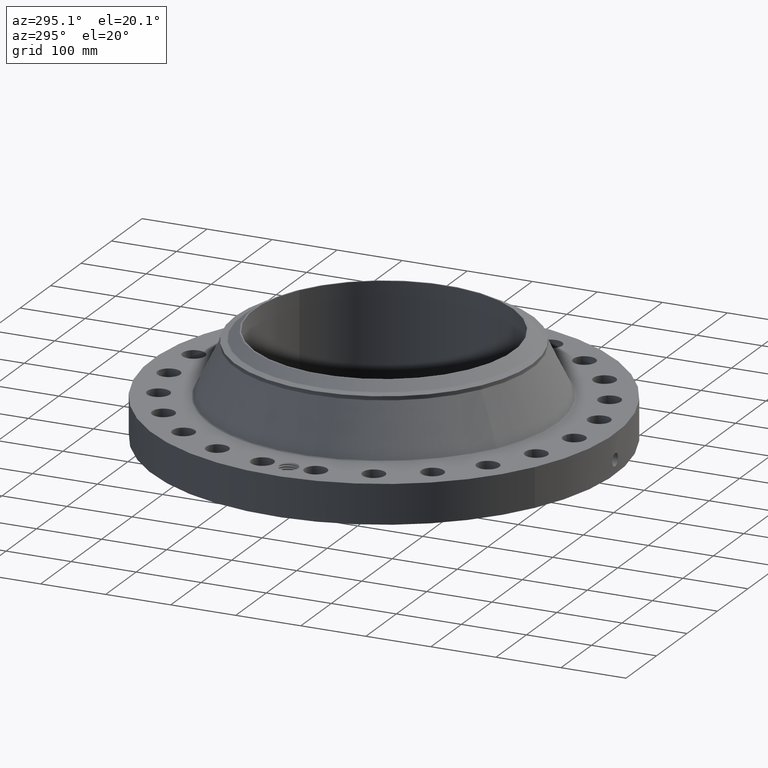
[diagram: clean part render]
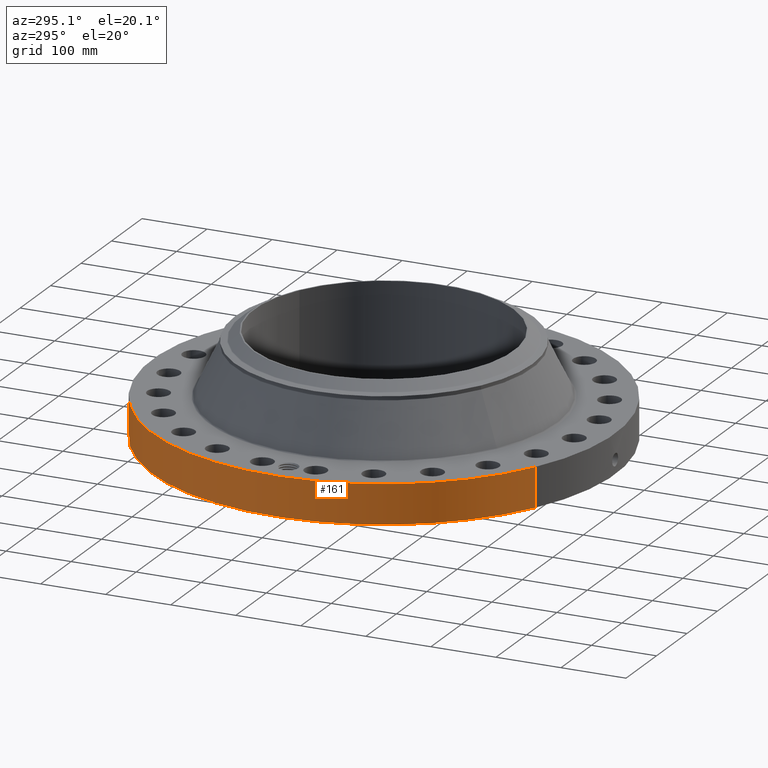
[diagram: same view with one face highlighted and labeled with its STEP entity id]
A machine part, auxiliary view. The second image highlights one B-rep face of the part: STEP entity #161.
In plain terms, the highlighted cylindrical surface (partial cylindrical patch) has radius 355.6 mm, axis along (0, 0, -1).
Its self-contained STEP definition (entity closure, byte-faithful):
#38=AXIS2_PLACEMENT_3D('Cylinder Axis2P3D',#35,#36,#37) ;
#42=AXIS2_PLACEMENT_3D('Circle Axis2P3D',#40,#41,$) ;
#58=AXIS2_PLACEMENT_3D('Circle Axis2P3D',#56,#57,$) ;
#35=CARTESIAN_POINT('Axis2P3D Location',(0.,0.,3.15500000001)) ;
#40=CARTESIAN_POINT('Axis2P3D Location',(0.,0.,0.0600000000002)) ;
#44=CARTESIAN_POINT('Vertex',(-6.71195754049,-12.2861558665,0.0600000000002)) ;
#46=CARTESIAN_POINT('Vertex',(6.71195754049,12.2861558665,0.0600000000002)) ;
#49=CARTESIAN_POINT('Line Origine',(-6.71195754049,-12.2861558665,1.25000000001)) ;
#53=CARTESIAN_POINT('Vertex',(-6.71195754049,-12.2861558665,2.44000000001)) ;
#56=CARTESIAN_POINT('Axis2P3D Location',(0.,0.,2.44000000001)) ;
#60=CARTESIAN_POINT('Vertex',(6.71195754049,12.2861558665,2.44000000001)) ;
#63=CARTESIAN_POINT('Line Origine',(6.71195754049,12.2861558665,1.25000000001)) ;
#75=CARTESIAN_POINT('Control Point',(-0.000716127867557,13.9999999817,1.2941184611)) ;
#76=CARTESIAN_POINT('Control Point',(-0.019075692183,13.9999990426,1.29408137462)) ;
#77=CARTESIAN_POINT('Control Point',(-0.0374320289482,13.9999617001,1.29261239075)) ;
#78=CARTESIAN_POINT('Control Point',(-0.0555635768001,13.9998897385,1.28972942871)) ;
#79=CARTESIAN_POINT('Vertex',(-0.000715744029725,13.9999999818,1.29411851041)) ;
#81=CARTESIAN_POINT('Vertex',(-0.0555546444298,13.9998900267,1.28973086744)) ;
#85=CARTESIAN_POINT('Control Point',(-0.0555545482502,13.9998897743,1.28973031747)) ;
#86=CARTESIAN_POINT('Control Point',(-0.0958936325267,13.9997297003,1.28526514862)) ;
#87=CARTESIAN_POINT('Control Point',(-0.13558144376,13.999391176,1.27345856191)) ;
#88=CARTESIAN_POINT('Control Point',(-0.172124900836,13.9989418536,1.25510326735)) ;
#89=CARTESIAN_POINT('Vertex',(-0.172124900836,13.9989418536,1.25510326735)) ;
#93=CARTESIAN_POINT('Control Point',(-0.0309215443361,13.9999658521,0.531182270677)) ;
#94=CARTESIAN_POINT('Control Point',(-0.100166440143,13.9998129118,0.539950593389)) ;
#95=CARTESIAN_POINT('Control Point',(-0.167079236989,13.9992370071,0.564143778967)) ;
#96=CARTESIAN_POINT('Control Point',(-0.226861954502,13.9983036339,0.602946396902)) ;
#97=CARTESIAN_POINT('Control Point',(-0.299410381865,13.9968606612,0.676992644412)) ;
#98=CARTESIAN_POINT('Control Point',(-0.344252870511,13.9957762927,0.767303575702)) ;
#99=CARTESIAN_POINT('Control Point',(-0.355712957494,13.9954842685,0.798010937771)) ;
#100=CARTESIAN_POINT('Control Point',(-0.374230294245,13.9950011289,0.869287899484)) ;
#101=CARTESIAN_POINT('Control Point',(-0.37590203558,13.9949509829,0.942614532078)) ;
#102=CARTESIAN_POINT('Control Point',(-0.371520169502,13.9950715435,0.983222785399)) ;
#103=CARTESIAN_POINT('Control Point',(-0.349038329194,13.9956736807,1.0757173805)) ;
#104=CARTESIAN_POINT('Control Point',(-0.299568240056,13.9968425287,1.15711544893)) ;
#105=CARTESIAN_POINT('Control Point',(-0.263036001541,13.9976212517,1.19806543943)) ;
#106=CARTESIAN_POINT('Control Point',(-0.219778115207,13.9983559304,1.2311676831)) ;
#107=CARTESIAN_POINT('Control Point',(-0.172124900836,13.9989418536,1.25510326735)) ;
#108=CARTESIAN_POINT('Vertex',(-0.0309215443361,13.9999658521,0.531182270677)) ;
#112=CARTESIAN_POINT('Control Point',(-0.030921544336,13.9999658521,0.531182270677)) ;
#113=CARTESIAN_POINT('Control Point',(-0.0206093649101,13.9999886285,0.530873555988)) ;
#114=CARTESIAN_POINT('Control Point',(-0.0102899488199,14.0000000021,0.530937862641)) ;
#115=CARTESIAN_POINT('Control Point',(2.72878355402E-006,14.0000000001,0.531374667806)) ;
#116=CARTESIAN_POINT('Vertex',(2.72878354219E-006,14.0000000001,0.531374667806)) ;
#120=CARTESIAN_POINT('Control Point',(0.192703589045,13.9986736989,0.587269393771)) ;
#121=CARTESIAN_POINT('Control Point',(0.149035569378,13.9992748261,0.561955714129)) ;
#122=CARTESIAN_POINT('Control Point',(0.101122046138,13.9997535108,0.543750366055)) ;
#123=CARTESIAN_POINT('Control Point',(0.0508078032042,13.9999999902,0.533530754797)) ;
#124=CARTESIAN_POINT('Control Point',(2.72878350427E-006,14.0000000001,0.531374667806)) ;
#125=CARTESIAN_POINT('Vertex',(0.192703589045,13.9986736989,0.587269393771)) ;
#129=CARTESIAN_POINT('Control Point',(0.192703589045,13.9986736989,0.587269393771)) ;
#130=CARTESIAN_POINT('Control Point',(0.249588117198,13.9978906352,0.620244477994)) ;
#131=CARTESIAN_POINT('Control Point',(0.299738710451,13.9969112726,0.664526604094)) ;
#132=CARTESIAN_POINT('Control Point',(0.340015978037,13.9959144401,0.718593042752)) ;
#133=CARTESIAN_POINT('Control Point',(0.384401829944,13.994732457,0.816720986374)) ;
#134=CARTESIAN_POINT('Control Point',(0.393085676983,13.9944790209,0.922012512939)) ;
#135=CARTESIAN_POINT('Control Point',(0.391005827296,13.9945390527,0.96214484822)) ;
#136=CARTESIAN_POINT('Control Point',(0.376915976506,13.9949387522,1.03701486532)) ;
#137=CARTESIAN_POINT('Control Point',(0.344864456694,13.9957656029,1.10542250034)) ;
#138=CARTESIAN_POINT('Control Point',(0.325823316118,13.9962322037,1.13584274486)) ;
#139=CARTESIAN_POINT('Control Point',(0.264021805958,13.9976173433,1.21245041171)) ;
#140=CARTESIAN_POINT('Control Point',(0.18076197247,13.9989966383,1.26554894151)) ;
#141=CARTESIAN_POINT('Control Point',(0.121808192936,13.9996739846,1.2876552619)) ;
#142=CARTESIAN_POINT('Control Point',(0.0604215872577,14.0000001117,1.29711662666)) ;
#143=CARTESIAN_POINT('Control Point',(-2.58579355713E-005,14.,1.2941529843)) ;
#144=CARTESIAN_POINT('Vertex',(-2.58579355474E-005,14.,1.2941529843)) ;
#148=CARTESIAN_POINT('Control Point',(-0.000715744020048,13.9999999818,1.29411851039)) ;
#149=CARTESIAN_POINT('Control Point',(-0.000370825468642,13.9999999994,1.2941360711)) ;
#150=CARTESIAN_POINT('Control Point',(-2.58579406759E-005,14.,1.2941529843)) ;
#36=DIRECTION('Axis2P3D Direction',(0.,0.,-0.0393700787402)) ;
#37=DIRECTION('Axis2P3D XDirection',(0.0188750212049,0.0345504945626,0.)) ;
#41=DIRECTION('Axis2P3D Direction',(0.,0.,-0.0393700787402)) ;
#50=DIRECTION('Vector Direction',(0.,0.,-0.0393700787402)) ;
#57=DIRECTION('Axis2P3D Direction',(0.,0.,-0.0393700787402)) ;
#64=DIRECTION('Vector Direction',(0.,0.,-0.0393700787402)) ;
#51=VECTOR('Line Direction',#50,0.0393700787402) ;
#65=VECTOR('Line Direction',#64,0.0393700787402) ;
#69=ORIENTED_EDGE('',*,*,#48,.F.) ;
#70=ORIENTED_EDGE('',*,*,#55,.T.) ;
#71=ORIENTED_EDGE('',*,*,#62,.T.) ;
#72=ORIENTED_EDGE('',*,*,#67,.F.) ;
#153=ORIENTED_EDGE('',*,*,#83,.T.) ;
#154=ORIENTED_EDGE('',*,*,#91,.T.) ;
#155=ORIENTED_EDGE('',*,*,#110,.F.) ;
#156=ORIENTED_EDGE('',*,*,#118,.T.) ;
#157=ORIENTED_EDGE('',*,*,#127,.F.) ;
#158=ORIENTED_EDGE('',*,*,#146,.T.) ;
#159=ORIENTED_EDGE('',*,*,#151,.F.) ;
#160=FACE_BOUND('',#152,.T.) ;
#161=ADVANCED_FACE('PartBody',(#73,#160),#39,.T.) ;
#74=B_SPLINE_CURVE_WITH_KNOTS('',3,(#75,#76,#77,#78),.UNSPECIFIED.,.F.,.U.,(4,4),(34.6165208686,36.6533405461),.UNSPECIFIED.) ;
#84=B_SPLINE_CURVE_WITH_KNOTS('',3,(#85,#86,#87,#88),.UNSPECIFIED.,.F.,.U.,(4,4),(0.,4.56033627725),.UNSPECIFIED.) ;
#92=B_SPLINE_CURVE_WITH_KNOTS('',5,(#93,#94,#95,#96,#97,#98,#99,#100,#101,#102,#103,#104,#105,#106,#107),.UNSPECIFIED.,.F.,.U.,(6,3,3,3,6),(0.,12.1301134695,17.9857334594,25.3556992544,35.2669441954),.UNSPECIFIED.) ;
#111=B_SPLINE_CURVE_WITH_KNOTS('',3,(#112,#113,#114,#115),.UNSPECIFIED.,.F.,.U.,(4,4),(0.,1.07570519055),.UNSPECIFIED.) ;
#119=B_SPLINE_CURVE_WITH_KNOTS('',4,(#120,#121,#122,#123,#124),.UNSPECIFIED.,.F.,.U.,(5,5),(0.,7.07963263332),.UNSPECIFIED.) ;
#128=B_SPLINE_CURVE_WITH_KNOTS('',5,(#129,#130,#131,#132,#133,#134,#135,#136,#137,#138,#139,#140,#141,#142,#143),.UNSPECIFIED.,.F.,.U.,(6,3,3,3,6),(0.,11.5279315954,18.594353116,25.0081300063,36.3070120002),.UNSPECIFIED.) ;
#147=B_SPLINE_CURVE_WITH_KNOTS('',2,(#148,#149,#150),.UNSPECIFIED.,.F.,.U.,(3,3),(1.02463830809,1.05043094532),.UNSPECIFIED.) ;
#43=CIRCLE('generated circle',#42,14.0000000001) ;
#59=CIRCLE('generated circle',#58,14.0000000001) ;
#39=CYLINDRICAL_SURFACE('generated cylinder',#38,14.0000000001) ;
#48=EDGE_CURVE('',#45,#47,#43,.T.) ;
#55=EDGE_CURVE('',#45,#54,#52,.F.) ;
#62=EDGE_CURVE('',#54,#61,#59,.T.) ;
#67=EDGE_CURVE('',#47,#61,#66,.F.) ;
#83=EDGE_CURVE('',#80,#82,#74,.T.) ;
#91=EDGE_CURVE('',#82,#90,#84,.T.) ;
#110=EDGE_CURVE('',#109,#90,#92,.T.) ;
#118=EDGE_CURVE('',#109,#117,#111,.T.) ;
#127=EDGE_CURVE('',#126,#117,#119,.T.) ;
#146=EDGE_CURVE('',#126,#145,#128,.T.) ;
#151=EDGE_CURVE('',#80,#145,#147,.T.) ;
#68=EDGE_LOOP('',(#69,#70,#71,#72)) ;
#152=EDGE_LOOP('',(#153,#154,#155,#156,#157,#158,#159)) ;
#73=FACE_OUTER_BOUND('',#68,.T.) ;
#52=LINE('Line',#49,#51) ;
#66=LINE('Line',#63,#65) ;
#45=VERTEX_POINT('',#44) ;
#47=VERTEX_POINT('',#46) ;
#54=VERTEX_POINT('',#53) ;
#61=VERTEX_POINT('',#60) ;
#80=VERTEX_POINT('',#79) ;
#82=VERTEX_POINT('',#81) ;
#90=VERTEX_POINT('',#89) ;
#109=VERTEX_POINT('',#108) ;
#117=VERTEX_POINT('',#116) ;
#126=VERTEX_POINT('',#125) ;
#145=VERTEX_POINT('',#144) ;